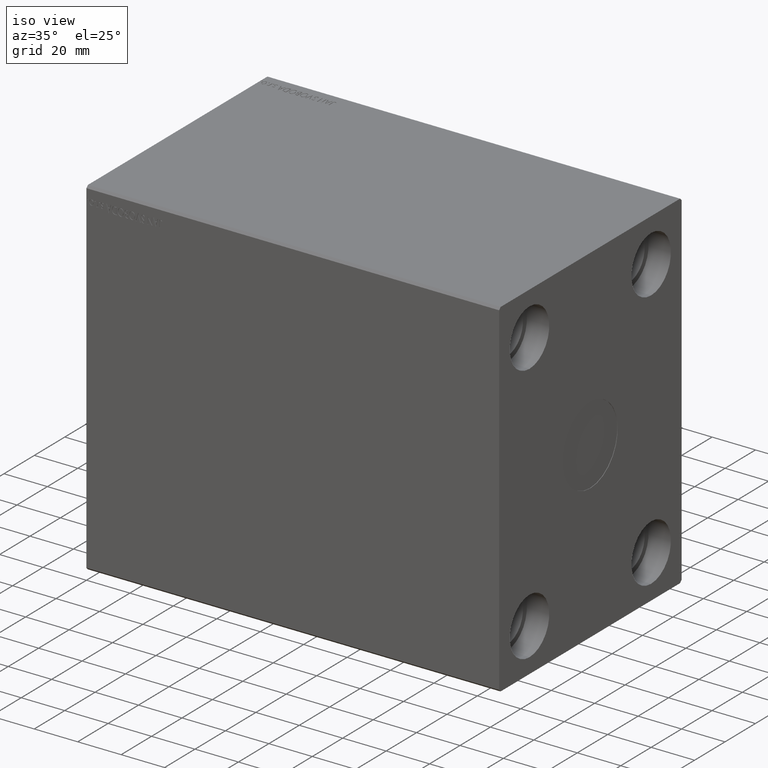
[diagram: clean part render]
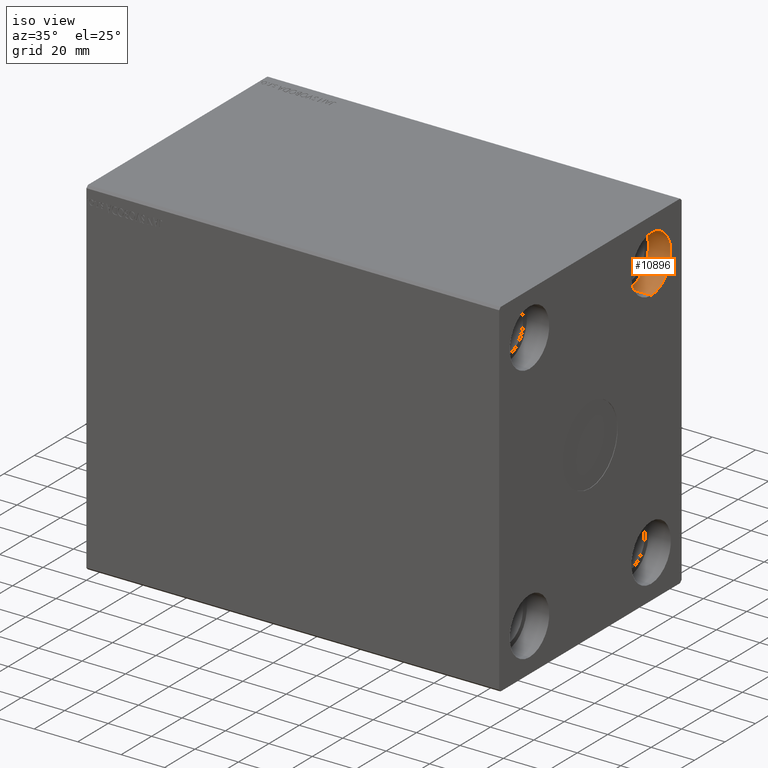
[diagram: same view with one face highlighted and labeled with its STEP entity id]
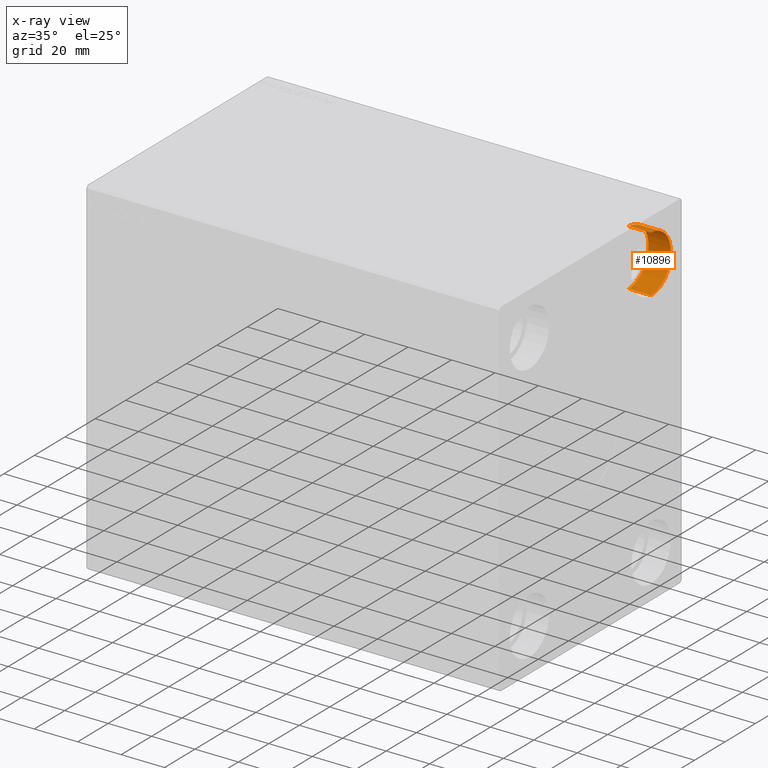
[diagram: x-ray of the same camera — body ghosted, the highlighted face saturated]
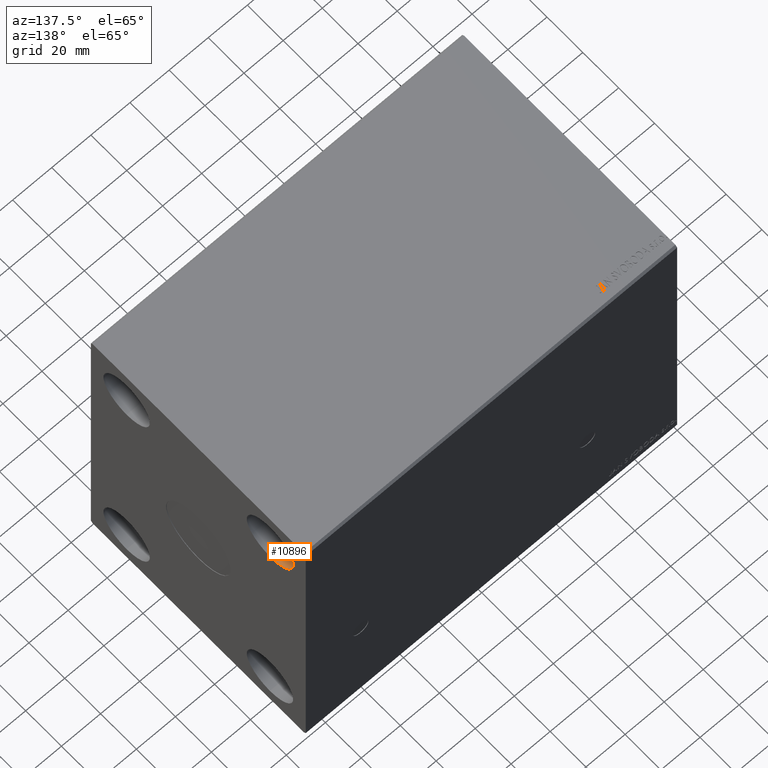
[diagram: same view with one face highlighted and labeled with its STEP entity id]
A machine part, iso view. The second image highlights one B-rep face of the part: STEP entity #10896.
The next image is the same camera in x-ray: the body ghosted, the highlighted face saturated — about 0% of this face is hidden behind the body in this view.
A second angle (auxiliary view) of the same face is appended — the face is thin or edge-on in the first view.
In plain terms, the highlighted cylindrical surface (edge-blend (fillet) strip) has radius 13 mm, axis along (1, -0, -0).
Its self-contained STEP definition (entity closure, byte-faithful):
#667 = EDGE_CURVE ( 'NONE', #20660, #5189, #742, .T. ) ;
#742 = CIRCLE ( 'NONE', #12397, 13.00000000000001066 ) ;
#2405 = ORIENTED_EDGE ( 'NONE', *, *, #24557, .F. ) ;
#2702 = AXIS2_PLACEMENT_3D ( 'NONE', #34105, #7912, #38179 ) ;
#2996 = LINE ( 'NONE', #22540, #26390 ) ;
#5189 = VERTEX_POINT ( 'NONE', #9295 ) ;
#7150 = CYLINDRICAL_SURFACE ( 'NONE', #11248, 13.00000000000001066 ) ;
#7912 = DIRECTION ( 'NONE',  ( 1.000000000000000000, -0.000000000000000000, -0.000000000000000000 ) ) ;
#8745 = CARTESIAN_POINT ( 'NONE',  ( 179.6699999999999875, 40.00000000000000711, 73.00000000000002842 ) ) ;
#9050 = ORIENTED_EDGE ( 'NONE', *, *, #667, .T. ) ;
#9295 = CARTESIAN_POINT ( 'NONE',  ( 190.0000000000000000, 40.00000000000000711, 73.00000000000002842 ) ) ;
#10896 = ADVANCED_FACE ( 'NONE', ( #33137 ), #7150, .F. ) ;
#11248 = AXIS2_PLACEMENT_3D ( 'NONE', #13374, #29702, #30136 ) ;
#12397 = AXIS2_PLACEMENT_3D ( 'NONE', #35006, #38854, #18672 ) ;
#13322 = VECTOR ( 'NONE', #18601, 1000.000000000000000 ) ;
#13374 = CARTESIAN_POINT ( 'NONE',  ( 179.6699999999999875, 40.00000000000000711, 60.00000000000002132 ) ) ;
#13667 = CIRCLE ( 'NONE', #2702, 13.00000000000001066 ) ;
#13886 = ORIENTED_EDGE ( 'NONE', *, *, #25474, .T. ) ;
#18601 = DIRECTION ( 'NONE',  ( 1.000000000000000000, -0.000000000000000000, -0.000000000000000000 ) ) ;
#18672 = DIRECTION ( 'NONE',  ( 0.000000000000000000, 0.000000000000000000, -1.000000000000000000 ) ) ;
#18677 = CARTESIAN_POINT ( 'NONE',  ( 190.0000000000000000, 40.00000000000000711, 47.00000000000000711 ) ) ;
#19032 = CARTESIAN_POINT ( 'NONE',  ( 179.6699999999999875, 40.00000000000000711, 47.00000000000000711 ) ) ;
#19310 = CARTESIAN_POINT ( 'NONE',  ( 179.6699999999999875, 40.00000000000000711, 73.00000000000002842 ) ) ;
#20660 = VERTEX_POINT ( 'NONE', #18677 ) ;
#21928 = EDGE_LOOP ( 'NONE', ( #2405, #32961, #13886, #9050 ) ) ;
#22540 = CARTESIAN_POINT ( 'NONE',  ( 179.6699999999999875, 40.00000000000000711, 47.00000000000000711 ) ) ;
#24557 = EDGE_CURVE ( 'NONE', #40054, #5189, #38153, .T. ) ;
#25474 = EDGE_CURVE ( 'NONE', #37895, #20660, #2996, .T. ) ;
#26390 = VECTOR ( 'NONE', #38655, 1000.000000000000000 ) ;
#29702 = DIRECTION ( 'NONE',  ( 1.000000000000000000, -0.000000000000000000, -0.000000000000000000 ) ) ;
#30136 = DIRECTION ( 'NONE',  ( 0.000000000000000000, 0.000000000000000000, -1.000000000000000000 ) ) ;
#32961 = ORIENTED_EDGE ( 'NONE', *, *, #39499, .F. ) ;
#33137 = FACE_OUTER_BOUND ( 'NONE', #21928, .T. ) ;
#34105 = CARTESIAN_POINT ( 'NONE',  ( 179.6699999999999875, 40.00000000000000711, 60.00000000000002132 ) ) ;
#35006 = CARTESIAN_POINT ( 'NONE',  ( 190.0000000000000000, 40.00000000000000711, 60.00000000000002132 ) ) ;
#37895 = VERTEX_POINT ( 'NONE', #19032 ) ;
#38153 = LINE ( 'NONE', #8745, #13322 ) ;
#38179 = DIRECTION ( 'NONE',  ( 0.000000000000000000, 0.000000000000000000, -1.000000000000000000 ) ) ;
#38655 = DIRECTION ( 'NONE',  ( 1.000000000000000000, -0.000000000000000000, -0.000000000000000000 ) ) ;
#38854 = DIRECTION ( 'NONE',  ( 1.000000000000000000, -0.000000000000000000, -0.000000000000000000 ) ) ;
#39499 = EDGE_CURVE ( 'NONE', #37895, #40054, #13667, .T. ) ;
#40054 = VERTEX_POINT ( 'NONE', #19310 ) ;